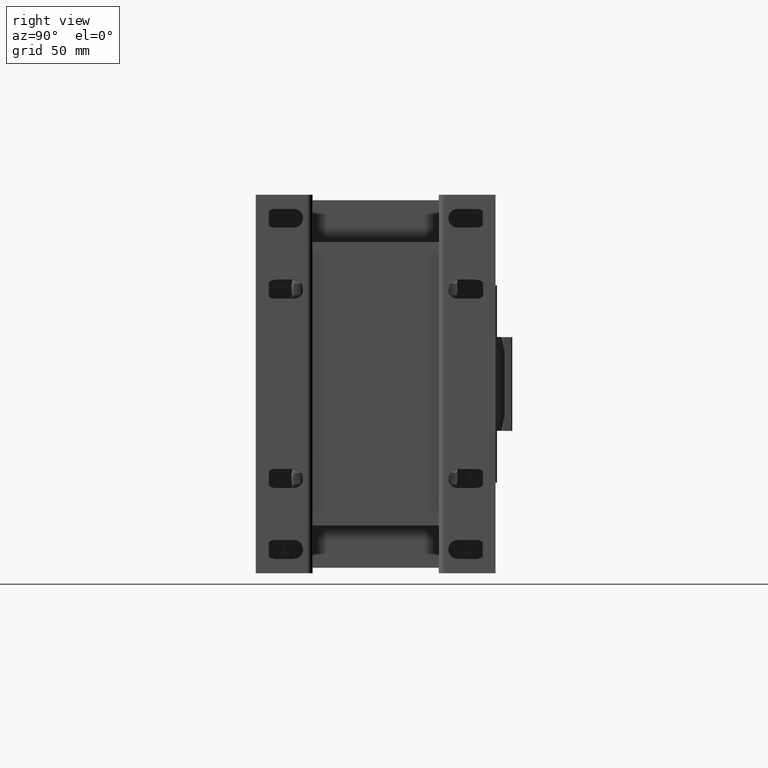
[diagram: clean part render]
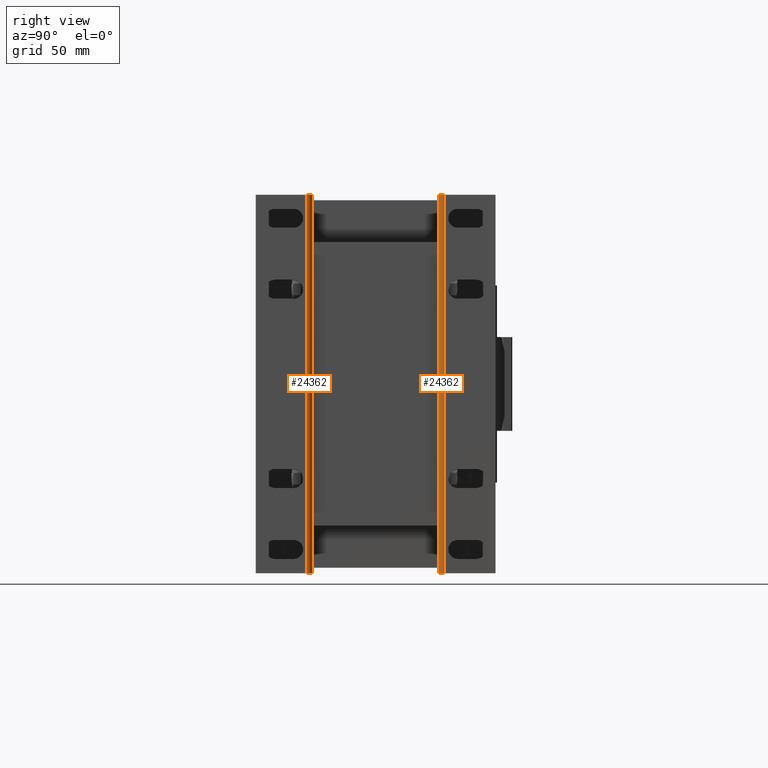
[diagram: same view with one multi-face feature highlighted, each face labeled with its STEP entity id]
A machine part, right view. The highlighted faces form ONE feature: a constant-radius fillet chain: 2 tangent blend faces with common blend radius 3.5 mm. The faces share edges in the B-rep.
Their STEP definitions:
[1] entity #24362 (Cylinder):
#1129=CIRCLE('',#26049,3.5);
#1130=CIRCLE('',#26050,3.5);
#1965=CYLINDRICAL_SURFACE('',#26048,3.5);
#2408=FACE_OUTER_BOUND('',#3774,.T.);
#3774=EDGE_LOOP('',(#16420,#16421,#16422,#16423));
#5238=LINE('',#35571,#7835);
#5239=LINE('',#35575,#7836);
#7835=VECTOR('',#28436,10.);
#7836=VECTOR('',#28439,10.);
#10428=VERTEX_POINT('',#35569);
#10429=VERTEX_POINT('',#35570);
#10430=VERTEX_POINT('',#35572);
#10431=VERTEX_POINT('',#35574);
#12763=EDGE_CURVE('',#10428,#10429,#5238,.T.);
#12764=EDGE_CURVE('',#10430,#10428,#1129,.T.);
#12765=EDGE_CURVE('',#10431,#10430,#5239,.T.);
#12766=EDGE_CURVE('',#10429,#10431,#1130,.T.);
#16420=ORIENTED_EDGE('',*,*,#12763,.F.);
#16421=ORIENTED_EDGE('',*,*,#12764,.F.);
#16422=ORIENTED_EDGE('',*,*,#12765,.F.);
#16423=ORIENTED_EDGE('',*,*,#12766,.F.);
#24362=ADVANCED_FACE('',(#2408),#1965,.T.);
#26048=AXIS2_PLACEMENT_3D('',#35568,#28434,#28435);
#26049=AXIS2_PLACEMENT_3D('',#35573,#28437,#28438);
#26050=AXIS2_PLACEMENT_3D('',#35576,#28440,#28441);
#28434=DIRECTION('center_axis',(-2.96059473233375E-16,0.,-1.));
#28435=DIRECTION('ref_axis',(0.,-1.,0.));
#28436=DIRECTION('',(2.9665254108841E-16,0.,1.));
#28437=DIRECTION('center_axis',(-2.96059473233375E-16,0.,-1.));
#28438=DIRECTION('ref_axis',(0.,-1.,0.));
#28439=DIRECTION('',(-2.96059473233375E-16,0.,-1.));
#28440=DIRECTION('center_axis',(2.96059473233375E-16,0.,1.));
#28441=DIRECTION('ref_axis',(-1.,1.74463618155382E-15,0.));
#35568=CARTESIAN_POINT('Origin',(-50.5,3.5,120.));
#35569=CARTESIAN_POINT('',(-54.,3.50000000000001,5.66691898895079E-15));
#35570=CARTESIAN_POINT('',(-53.9999999999999,3.50000000000001,240.));
#35571=CARTESIAN_POINT('',(-54.,3.50000000000001,120.));
#35572=CARTESIAN_POINT('',(-50.5,-5.55111512312578E-16,0.));
#35573=CARTESIAN_POINT('Origin',(-50.5,3.5,0.));
#35574=CARTESIAN_POINT('',(-50.4999999999999,-5.55111512312578E-16,240.));
#35575=CARTESIAN_POINT('',(-50.5,0.,180.));
#35576=CARTESIAN_POINT('Origin',(-50.4999999999999,3.5,240.));
[2] entity #24362 (Cylinder):
#1129=CIRCLE('',#26049,3.5);
#1130=CIRCLE('',#26050,3.5);
#1965=CYLINDRICAL_SURFACE('',#26048,3.5);
#2408=FACE_OUTER_BOUND('',#3774,.T.);
#3774=EDGE_LOOP('',(#16420,#16421,#16422,#16423));
#5238=LINE('',#35571,#7835);
#5239=LINE('',#35575,#7836);
#7835=VECTOR('',#28436,10.);
#7836=VECTOR('',#28439,10.);
#10428=VERTEX_POINT('',#35569);
#10429=VERTEX_POINT('',#35570);
#10430=VERTEX_POINT('',#35572);
#10431=VERTEX_POINT('',#35574);
#12763=EDGE_CURVE('',#10428,#10429,#5238,.T.);
#12764=EDGE_CURVE('',#10430,#10428,#1129,.T.);
#12765=EDGE_CURVE('',#10431,#10430,#5239,.T.);
#12766=EDGE_CURVE('',#10429,#10431,#1130,.T.);
#16420=ORIENTED_EDGE('',*,*,#12763,.F.);
#16421=ORIENTED_EDGE('',*,*,#12764,.F.);
#16422=ORIENTED_EDGE('',*,*,#12765,.F.);
#16423=ORIENTED_EDGE('',*,*,#12766,.F.);
#24362=ADVANCED_FACE('',(#2408),#1965,.T.);
#26048=AXIS2_PLACEMENT_3D('',#35568,#28434,#28435);
#26049=AXIS2_PLACEMENT_3D('',#35573,#28437,#28438);
#26050=AXIS2_PLACEMENT_3D('',#35576,#28440,#28441);
#28434=DIRECTION('center_axis',(-2.96059473233375E-16,0.,-1.));
#28435=DIRECTION('ref_axis',(0.,-1.,0.));
#28436=DIRECTION('',(2.9665254108841E-16,0.,1.));
#28437=DIRECTION('center_axis',(-2.96059473233375E-16,0.,-1.));
#28438=DIRECTION('ref_axis',(0.,-1.,0.));
#28439=DIRECTION('',(-2.96059473233375E-16,0.,-1.));
#28440=DIRECTION('center_axis',(2.96059473233375E-16,0.,1.));
#28441=DIRECTION('ref_axis',(-1.,1.74463618155382E-15,0.));
#35568=CARTESIAN_POINT('Origin',(-50.5,3.5,120.));
#35569=CARTESIAN_POINT('',(-54.,3.50000000000001,5.66691898895079E-15));
#35570=CARTESIAN_POINT('',(-53.9999999999999,3.50000000000001,240.));
#35571=CARTESIAN_POINT('',(-54.,3.50000000000001,120.));
#35572=CARTESIAN_POINT('',(-50.5,-5.55111512312578E-16,0.));
#35573=CARTESIAN_POINT('Origin',(-50.5,3.5,0.));
#35574=CARTESIAN_POINT('',(-50.4999999999999,-5.55111512312578E-16,240.));
#35575=CARTESIAN_POINT('',(-50.5,0.,180.));
#35576=CARTESIAN_POINT('Origin',(-50.4999999999999,3.5,240.));